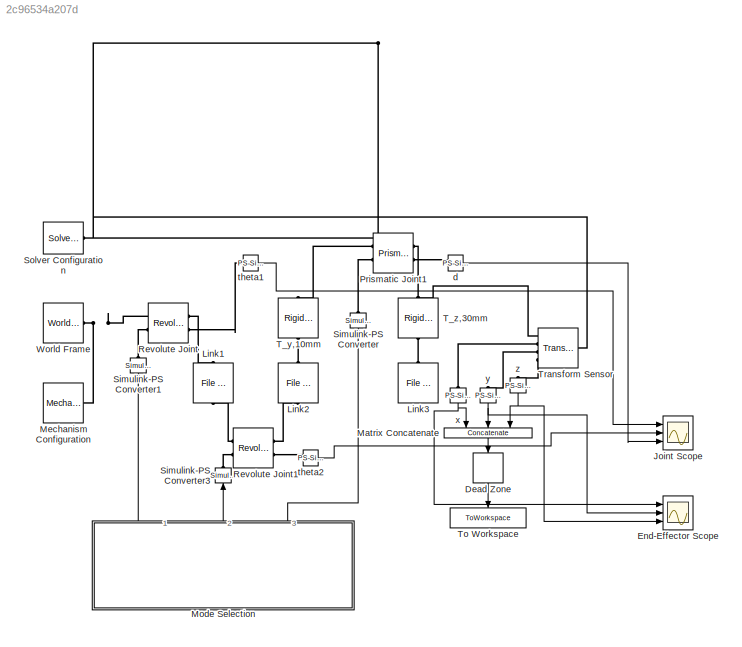
MODEL slx_2c96534a207d
KIND model
CONFIG AbsTol = 1e-3
CONFIG EnableMultiTasking = on
CONFIG FixedStep = auto
CONFIG InitFcn = cf=pwd;\naddpath(join([erase(cf,'\model'),'\codes']))\nprompt = {'Enter the \color{red}initial\color{black} coordinate of the end-effector in X Y Z order:(in mm)','Enter the \color{darkGreen}final\color{black} coordinate of the end-effector in X Y Z order:(in mm)'};\ndlgtitle = 'Robot Path';\ndefinput = {'284.829 -164.446 190.293','91.203 340.373 605.682'};\nopts.Interpreter = 'tex';\nfieldsize=[1 100];...<+1709ch>
CONFIG MaxStep = auto
CONFIG MinStep = auto
CONFIG RelTol = 1e-3
CONFIG SampleTimeConstraint = Unconstrained
CONFIG Solver = VariableStepAuto
CONFIG SolverName = VariableStepAuto
CONFIG StartTime = 0.0
CONFIG StopTime = 2.3951
BLOCK [DeadZone] Dead Zone
  LowerValue = -0.00001
  UpperValue = 0.00001
BLOCK [Scope] End-Effector Scope
  Floating = off
  NumInputPorts = 3
  Ports = [3]
  ScopeSpecificationString = Simulink.scopes.TimeScopeBlockCfg('CurrentConfiguration', extmgr.ConfigurationSet(extmgr.Configuration('Core','General UI',true),extmgr.Configuration('Core','Source UI',true),extmgr.Configuration('Sources','WiredSimulink',true,'DataLoggingVariableName','ScopeData1'),extmgr.Configuration('Visuals','Time Domain',true,'SerializedDisplays',{struct('MinYLimReal','-260.7111','MaxYLimReal','701.93778','Y...<+1402ch>
BLOCK [Scope] Joint Scope
  Floating = off
  NumInputPorts = 3
  Ports = [3]
  ScopeSpecificationString = Simulink.scopes.TimeScopeBlockCfg('CurrentConfiguration', extmgr.ConfigurationSet(extmgr.Configuration('Core','General UI',true),extmgr.Configuration('Core','Source UI',true),extmgr.Configuration('Sources','WiredSimulink',true),extmgr.Configuration('Visuals','Time Domain',true,'SerializedDisplays',{struct('MinYLimReal','-114.74744','MaxYLimReal','190.51138','YLabelReal','','MinYLimMag',' 0.00000',...<+1375ch>
BLOCK [Reference] Link1  REF=sm_lib/Body Elements/File Solid
  Ports = [0, 0, 0, 0, 0, 1, 1]
  SourceBlock = sm_lib/Body Elements/File Solid
  SourceProductBaseCode = MS
  SourceType = File Solid
BLOCK [Reference] Link2  REF=sm_lib/Body Elements/File Solid
  Ports = [0, 0, 0, 0, 0, 1, 1]
  SourceBlock = sm_lib/Body Elements/File Solid
  SourceProductBaseCode = MS
  SourceType = File Solid
BLOCK [Reference] Link3  REF=sm_lib/Body Elements/File Solid
  Ports = [0, 0, 0, 0, 0, 1]
  SourceBlock = sm_lib/Body Elements/File Solid
  SourceProductBaseCode = MS
  SourceType = File Solid
BLOCK [Concatenate] Matrix Concatenate
  ConcatenateDimension = 2
  NumInputs = 3
  Ports = [3, 1]
BLOCK [Reference] Mechanism Configuration  REF=sm_lib/Utilities/Mechanism
Configuration
  Ports = [0, 0, 0, 0, 0, 0, 1]
  SourceBlock = sm_lib/Utilities/Mechanism\nConfiguration
  SourceProductBaseCode = MS
  SourceType = Mechanism\nConfiguration
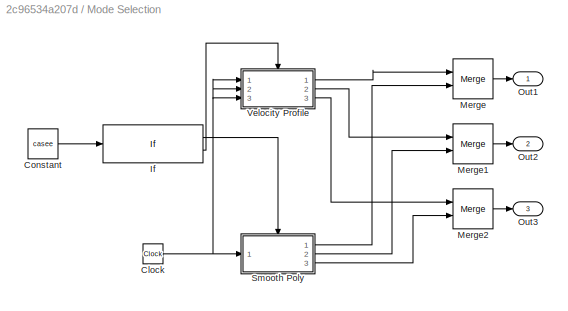
BLOCK [SubSystem] Mode Selection
  Ports = [0, 3]
  RequestExecContextInheritance = off
BLOCK [Clock] Mode Selection/Clock
BLOCK [Constant] Mode Selection/Constant
  Value = casee
BLOCK [If] Mode Selection/If
  IfExpression = u1 ==1
  Ports = [1, 2]
BLOCK [Merge] Mode Selection/Merge
  Ports = [2, 1]
BLOCK [Merge] Mode Selection/Merge1
  Ports = [2, 1]
BLOCK [Merge] Mode Selection/Merge2
  Ports = [2, 1]
BLOCK [Outport] Mode Selection/Out1
BLOCK [Outport] Mode Selection/Out2
  Port = 2
BLOCK [Outport] Mode Selection/Out3
  Port = 3
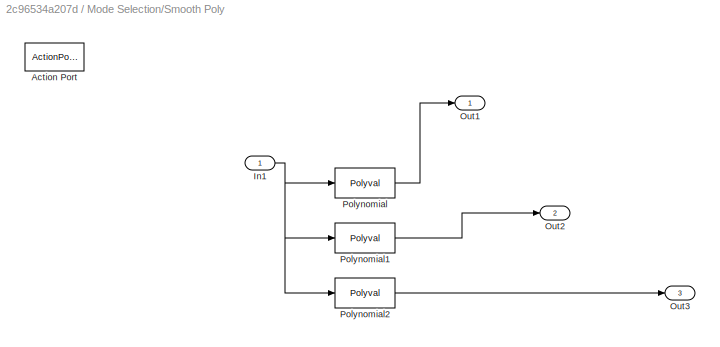
BLOCK [SubSystem] Mode Selection/Smooth Poly
  Ports = [1, 3, 0, 0, 0, 0, 0, 1]
  RequestExecContextInheritance = off
  TreatAsAtomicUnit = on
BLOCK [ActionPort] Mode Selection/Smooth Poly/Action Port
BLOCK [Inport] Mode Selection/Smooth Poly/In1
BLOCK [Outport] Mode Selection/Smooth Poly/Out1
BLOCK [Outport] Mode Selection/Smooth Poly/Out2
  Port = 2
BLOCK [Outport] Mode Selection/Smooth Poly/Out3
  Port = 3
BLOCK [Polyval] Mode Selection/Smooth Poly/Polynomial
  Coefs = a_t1
BLOCK [Polyval] Mode Selection/Smooth Poly/Polynomial1
  Coefs = a_t2
BLOCK [Polyval] Mode Selection/Smooth Poly/Polynomial2
  Coefs = a_d
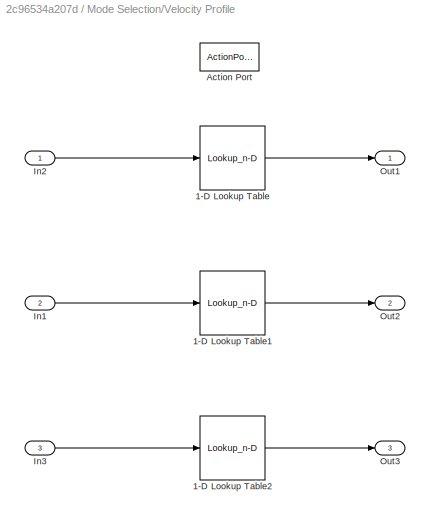
BLOCK [SubSystem] Mode Selection/Velocity Profile
  Ports = [3, 3, 0, 0, 0, 0, 0, 1]
  RequestExecContextInheritance = off
  TreatAsAtomicUnit = on
BLOCK [Lookup_n-D] Mode Selection/Velocity Profile/1-D Lookup Table
  BreakpointsForDimension1 = totalt
  BreakpointsForDimension1FirstPoint = 0
  BreakpointsForDimension1Spacing = 0.001
  BreakpointsSpecification = Even spacing
  IndexSearchMethod = Evenly spaced points
  InternalRulePriority = Speed
  NumberOfTableDimensions = 1
  Ports = [1, 1]
  RndMeth = Simplest
  Table = theta1
BLOCK [Lookup_n-D] Mode Selection/Velocity Profile/1-D Lookup Table1
  BreakpointsForDimension1 = totalt
  BreakpointsForDimension1FirstPoint = 0
  BreakpointsForDimension1Spacing = 0.001
  BreakpointsSpecification = Even spacing
  IndexSearchMethod = Evenly spaced points
  InternalRulePriority = Speed
  NumberOfTableDimensions = 1
  Ports = [1, 1]
  RndMeth = Simplest
  Table = theta2
BLOCK [Lookup_n-D] Mode Selection/Velocity Profile/1-D Lookup Table2
  BreakpointsForDimension1 = totalt
  BreakpointsForDimension1FirstPoint = 0
  BreakpointsForDimension1Spacing = 0.001
  BreakpointsSpecification = Even spacing
  IndexSearchMethod = Evenly spaced points
  InternalRulePriority = Speed
  NumberOfTableDimensions = 1
  Ports = [1, 1]
  RndMeth = Simplest
  Table = d
BLOCK [ActionPort] Mode Selection/Velocity Profile/Action Port
BLOCK [Inport] Mode Selection/Velocity Profile/In1
  Port = 2
BLOCK [Inport] Mode Selection/Velocity Profile/In2
BLOCK [Inport] Mode Selection/Velocity Profile/In3
  Port = 3
BLOCK [Outport] Mode Selection/Velocity Profile/Out1
BLOCK [Outport] Mode Selection/Velocity Profile/Out2
  Port = 2
BLOCK [Outport] Mode Selection/Velocity Profile/Out3
  Port = 3
BLOCK [Reference] Prismatic Joint1  REF=sm_lib/Joints/Prismatic
Joint
  Ports = [0, 0, 0, 0, 0, 2, 2]
  SourceBlock = sm_lib/Joints/Prismatic\nJoint
  SourceProductBaseCode = MS
  SourceType = Prismatic\nJoint
BLOCK [Reference] Revolute Joint  REF=sm_lib/Joints/Revolute Joint
  Ports = [0, 0, 0, 0, 0, 2, 2]
  SourceBlock = sm_lib/Joints/Revolute Joint
  SourceProductBaseCode = MS
  SourceType = Revolute Joint
BLOCK [Reference] Revolute Joint1  REF=sm_lib/Joints/Revolute Joint
  Ports = [0, 0, 0, 0, 0, 2, 2]
  SourceBlock = sm_lib/Joints/Revolute Joint
  SourceProductBaseCode = MS
  SourceType = Revolute Joint
BLOCK [Reference] Simulink-PS Converter  REF=nesl_utility/Simulink-PS
Converter
  Ports = [1, 0, 0, 0, 0, 0, 1]
  SourceBlock = nesl_utility/Simulink-PS\nConverter
  SourceProductBaseCode = PW,SS
  SourceType = Simulink-PS\nConverter
BLOCK [Reference] Simulink-PS Converter1  REF=nesl_utility/Simulink-PS
Converter
  Ports = [1, 0, 0, 0, 0, 0, 1]
  SourceBlock = nesl_utility/Simulink-PS\nConverter
  SourceProductBaseCode = PW,SS
  SourceType = Simulink-PS\nConverter
BLOCK [Reference] Simulink-PS Converter3  REF=nesl_utility/Simulink-PS
Converter
  Ports = [1, 0, 0, 0, 0, 0, 1]
  SourceBlock = nesl_utility/Simulink-PS\nConverter
  SourceProductBaseCode = PW,SS
  SourceType = Simulink-PS\nConverter
BLOCK [Reference] Solver Configuration  REF=nesl_utility/Solver
Configuration
  Ports = [0, 0, 0, 0, 0, 0, 1]
  SourceBlock = nesl_utility/Solver\nConfiguration
  SourceProductBaseCode = PW,SS
  SourceType = Solver\nConfiguration
BLOCK [Reference] T_y,10mm  REF=sm_lib/Frames and
Transforms/Rigid
Transform
  Ports = [0, 0, 0, 0, 0, 1, 1]
  SourceBlock = sm_lib/Frames and\nTransforms/Rigid\nTransform
  SourceProductBaseCode = MS
  SourceType = Rigid\nTransform
BLOCK [Reference] T_z,30mm  REF=sm_lib/Frames and
Transforms/Rigid
Transform
  Ports = [0, 0, 0, 0, 0, 1, 1]
  SourceBlock = sm_lib/Frames and\nTransforms/Rigid\nTransform
  SourceProductBaseCode = MS
  SourceType = Rigid\nTransform
BLOCK [ToWorkspace] To Workspace
  FixptAsFi = on
  MaxDataPoints = inf
  Ports = [1]
  SampleTime = -1
  SaveFormat = Timeseries
  VariableName = position
BLOCK [Reference] Transform Sensor  REF=sm_lib/Frames and
Transforms/Transform
Sensor
  Ports = [0, 0, 0, 0, 0, 1, 4]
  SourceBlock = sm_lib/Frames and\nTransforms/Transform\nSensor
  SourceProductBaseCode = MS
  SourceType = Transform\nSensor
BLOCK [Reference] World Frame  REF=sm_lib/Frames and
Transforms/World Frame
  Ports = [0, 0, 0, 0, 0, 0, 1]
  SourceBlock = sm_lib/Frames and\nTransforms/World Frame
  SourceProductBaseCode = MS
  SourceType = World Frame
BLOCK [Reference] d  REF=nesl_utility/PS-Simulink
Converter
  Ports = [0, 1, 0, 0, 0, 1]
  SourceBlock = nesl_utility/PS-Simulink\nConverter
  SourceProductBaseCode = PW,SS
  SourceType = PS-Simulink\nConverter
BLOCK [Reference] theta1  REF=nesl_utility/PS-Simulink
Converter
  Ports = [0, 1, 0, 0, 0, 1]
  SourceBlock = nesl_utility/PS-Simulink\nConverter
  SourceProductBaseCode = PW,SS
  SourceType = PS-Simulink\nConverter
BLOCK [Reference] theta2  REF=nesl_utility/PS-Simulink
Converter
  Ports = [0, 1, 0, 0, 0, 1]
  SourceBlock = nesl_utility/PS-Simulink\nConverter
  SourceProductBaseCode = PW,SS
  SourceType = PS-Simulink\nConverter
BLOCK [Reference] x  REF=nesl_utility/PS-Simulink
Converter
  Ports = [0, 1, 0, 0, 0, 1]
  SourceBlock = nesl_utility/PS-Simulink\nConverter
  SourceProductBaseCode = PW,SS
  SourceType = PS-Simulink\nConverter
BLOCK [Reference] y  REF=nesl_utility/PS-Simulink
Converter
  Ports = [0, 1, 0, 0, 0, 1]
  SourceBlock = nesl_utility/PS-Simulink\nConverter
  SourceProductBaseCode = PW,SS
  SourceType = PS-Simulink\nConverter
BLOCK [Reference] z  REF=nesl_utility/PS-Simulink
Converter
  Ports = [0, 1, 0, 0, 0, 1]
  SourceBlock = nesl_utility/PS-Simulink\nConverter
  SourceProductBaseCode = PW,SS
  SourceType = PS-Simulink\nConverter
LINE Dead Zone:1 -> To Workspace:1
LINE Matrix Concatenate:1 -> Dead Zone:1
NET Mode Selection/Clock:1 -> Mode Selection/Smooth Poly:1, Mode Selection/Velocity Profile:1, Mode Selection/Velocity Profile:2, Mode Selection/Velocity Profile:3
LINE Mode Selection/Constant:1 -> Mode Selection/If:1
LINE Mode Selection/If:1 -> Mode Selection/Smooth Poly:ifaction
LINE Mode Selection/If:2 -> Mode Selection/Velocity Profile:ifaction
LINE Mode Selection/Merge1:1 -> Mode Selection/Out2:1
LINE Mode Selection/Merge2:1 -> Mode Selection/Out3:1
LINE Mode Selection/Merge:1 -> Mode Selection/Out1:1
NET Mode Selection/Smooth Poly/In1:1 -> Mode Selection/Smooth Poly/Polynomial1:1, Mode Selection/Smooth Poly/Polynomial2:1, Mode Selection/Smooth Poly/Polynomial:1
LINE Mode Selection/Smooth Poly/Polynomial1:1 -> Mode Selection/Smooth Poly/Out2:1
LINE Mode Selection/Smooth Poly/Polynomial2:1 -> Mode Selection/Smooth Poly/Out3:1
LINE Mode Selection/Smooth Poly/Polynomial:1 -> Mode Selection/Smooth Poly/Out1:1
LINE Mode Selection/Smooth Poly:1 -> Mode Selection/Merge:2
LINE Mode Selection/Smooth Poly:2 -> Mode Selection/Merge1:2
LINE Mode Selection/Smooth Poly:3 -> Mode Selection/Merge2:2
LINE Mode Selection/Velocity Profile/1-D Lookup Table1:1 -> Mode Selection/Velocity Profile/Out2:1
LINE Mode Selection/Velocity Profile/1-D Lookup Table2:1 -> Mode Selection/Velocity Profile/Out3:1
LINE Mode Selection/Velocity Profile/1-D Lookup Table:1 -> Mode Selection/Velocity Profile/Out1:1
LINE Mode Selection/Velocity Profile/In1:1 -> Mode Selection/Velocity Profile/1-D Lookup Table1:1
LINE Mode Selection/Velocity Profile/In2:1 -> Mode Selection/Velocity Profile/1-D Lookup Table:1
LINE Mode Selection/Velocity Profile/In3:1 -> Mode Selection/Velocity Profile/1-D Lookup Table2:1
LINE Mode Selection/Velocity Profile:1 -> Mode Selection/Merge:1
LINE Mode Selection/Velocity Profile:2 -> Mode Selection/Merge1:1
LINE Mode Selection/Velocity Profile:3 -> Mode Selection/Merge2:1
LINE Mode Selection:1 -> Simulink-PS Converter1:1
LINE Mode Selection:2 -> Simulink-PS Converter3:1
LINE Mode Selection:3 -> Simulink-PS Converter:1
LINE d:1 -> Joint Scope:3
LINE theta1:1 -> Joint Scope:1
LINE theta2:1 -> Joint Scope:2
NET x:1 -> End-Effector Scope:1, Matrix Concatenate:1
NET y:1 -> End-Effector Scope:2, Matrix Concatenate:2
NET z:1 -> End-Effector Scope:3, Matrix Concatenate:3
PLINE Link1:LConn1 -- Revolute Joint:RConn1
PLINE Link1:RConn1 -- Revolute Joint1:LConn1
PLINE Link2:LConn1 -- Revolute Joint1:RConn1
PLINE Link2:RConn1 -- T_y,10mm:LConn1
PLINE Link3:LConn1 -- T_z,30mm:LConn1
PNET net1: Mechanism Configuration:RConn1 -- Revolute Joint:LConn1 -- Solver Configuration:RConn1 -- Transform Sensor:LConn1 -- World Frame:RConn1
PLINE Prismatic Joint1:LConn1 -- T_y,10mm:RConn1
PLINE Prismatic Joint1:LConn2 -- Simulink-PS Converter:RConn1
PNET net2: Prismatic Joint1:RConn1 -- T_z,30mm:RConn1 -- Transform Sensor:RConn1
PLINE Prismatic Joint1:RConn2 -- d:LConn1
PLINE Revolute Joint1:LConn2 -- Simulink-PS Converter3:RConn1
PLINE Revolute Joint1:RConn2 -- theta2:LConn1
PLINE Revolute Joint:LConn2 -- Simulink-PS Converter1:RConn1
PLINE Revolute Joint:RConn2 -- theta1:LConn1
PLINE Transform Sensor:RConn2 -- x:LConn1
PLINE Transform Sensor:RConn3 -- y:LConn1
PLINE Transform Sensor:RConn4 -- z:LConn1
note: NET lines group one-source signal fan-out (src -> all destinations, sorted); 1:1 wires keep LINE; PNET lines group multi-terminal physical nets as a canonical sorted terminal list (undirected conserving connections); 2-terminal nets keep the pairwise PLINE form
